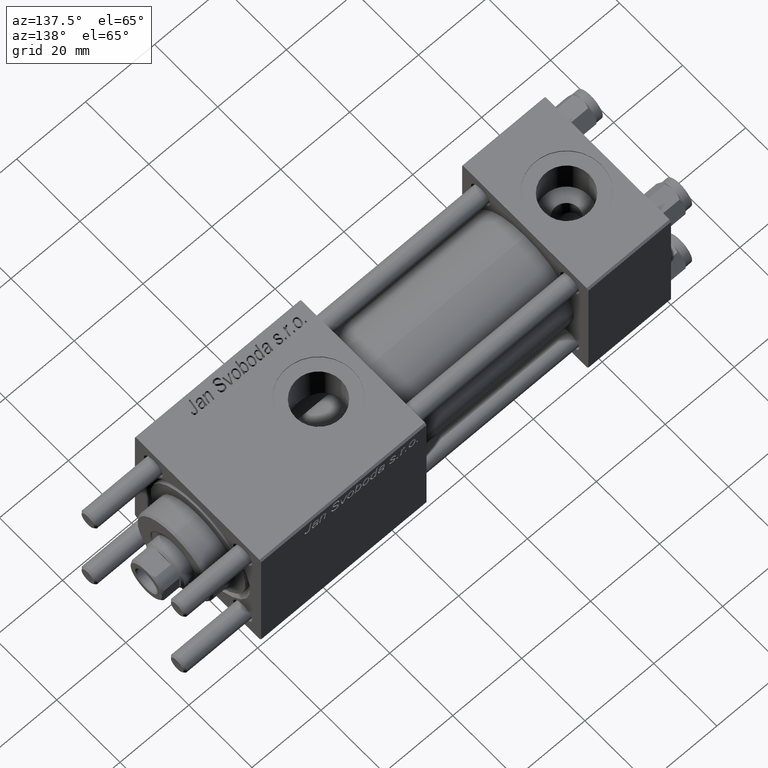
[diagram: clean part render]
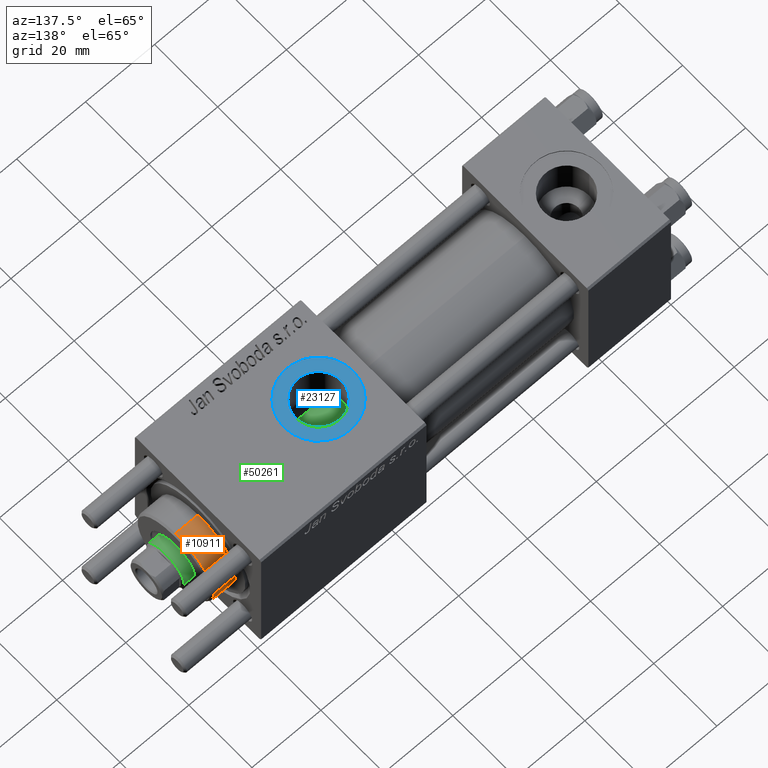
[diagram: same view with three faces highlighted in distinct colors, each labeled with its STEP entity id]
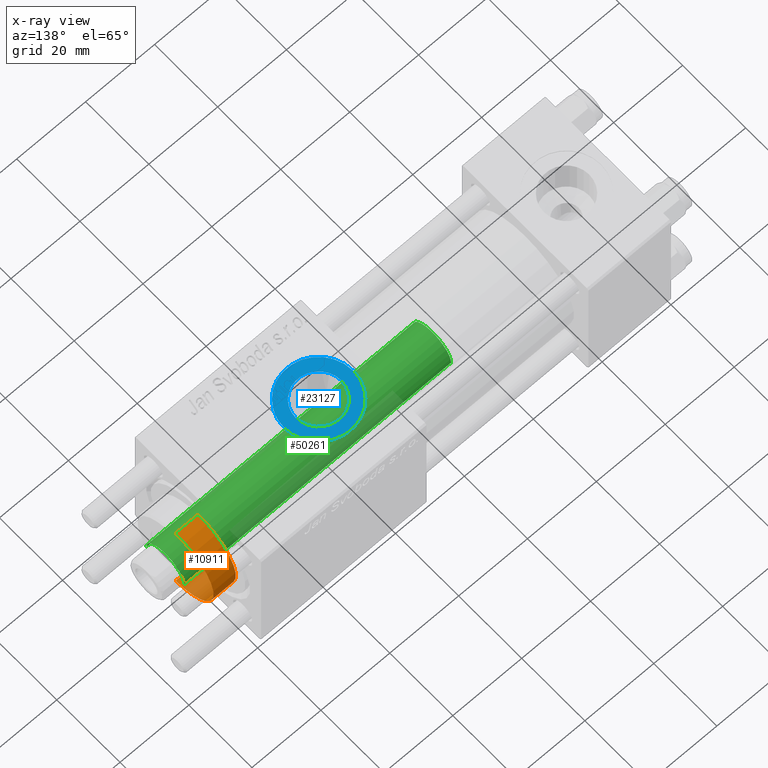
[diagram: x-ray of the same camera — body ghosted, the three highlighted faces saturated]
A machine part, auxiliary view with three faces highlighted in distinct colors.
The next image is the same camera in x-ray (body ghosted, the three faces saturated) — at least one of them is partly hidden behind the body in this view.
Their STEP definitions:

[orange] entity #10911 — the highlighted cylindrical surface (partial cylindrical patch) has radius 12 mm, axis along (-1, -0, 0).
#1764 = DIRECTION ( 'NONE',  ( -0.000000000000000000, -0.000000000000000000, -1.000000000000000000 ) ) ;
#2302 = VERTEX_POINT ( 'NONE', #48935 ) ;
#3316 = DIRECTION ( 'NONE',  ( -1.000000000000000000, 0.000000000000000000, 0.000000000000000000 ) ) ;
#7041 = ORIENTED_EDGE ( 'NONE', *, *, #15829, .F. ) ;
#8469 = DIRECTION ( 'NONE',  ( 1.000000000000000000, 0.000000000000000000, 0.000000000000000000 ) ) ;
#9552 = VERTEX_POINT ( 'NONE', #43004 ) ;
#9900 = CARTESIAN_POINT ( 'NONE',  ( 0.000000000000000000, 0.000000000000000000, 28.69999999999999929 ) ) ;
#10108 = CARTESIAN_POINT ( 'NONE',  ( 12.00000000000000178, 1.469576158976824144E-15, 35.70000000000000284 ) ) ;
#10657 = CARTESIAN_POINT ( 'NONE',  ( -12.00000000000000178, 0.000000000000000000, 28.69999999999999929 ) ) ;
#10911 = ADVANCED_FACE ( 'NONE', ( #20537 ), #42637, .T. ) ;
#11176 = EDGE_CURVE ( 'NONE', #2302, #44997, #39534, .T. ) ;
#15829 = EDGE_CURVE ( 'NONE', #20846, #44997, #43691, .T. ) ;
#16801 = CARTESIAN_POINT ( 'NONE',  ( 0.000000000000000000, 0.000000000000000000, 35.19999999999999574 ) ) ;
#17013 = ORIENTED_EDGE ( 'NONE', *, *, #11176, .T. ) ;
#17056 = AXIS2_PLACEMENT_3D ( 'NONE', #16801, #52090, #8469 ) ;
#17077 = CARTESIAN_POINT ( 'NONE',  ( 0.000000000000000000, 0.000000000000000000, 35.70000000000000284 ) ) ;
#17170 = CARTESIAN_POINT ( 'NONE',  ( -12.00000000000000178, 0.000000000000000000, 35.19999999999999574 ) ) ;
#17571 = DIRECTION ( 'NONE',  ( -0.000000000000000000, -0.000000000000000000, -1.000000000000000000 ) ) ;
#19569 = VECTOR ( 'NONE', #1764, 1000.000000000000000 ) ;
#20537 = FACE_OUTER_BOUND ( 'NONE', #21083, .T. ) ;
#20846 = VERTEX_POINT ( 'NONE', #17170 ) ;
#21083 = EDGE_LOOP ( 'NONE', ( #30814, #53252, #17013, #7041 ) ) ;
#21639 = CIRCLE ( 'NONE', #17056, 12.00000000000000178 ) ;
#27384 = DIRECTION ( 'NONE',  ( 0.000000000000000000, 0.000000000000000000, 1.000000000000000000 ) ) ;
#30814 = ORIENTED_EDGE ( 'NONE', *, *, #52834, .T. ) ;
#34034 = DIRECTION ( 'NONE',  ( -0.000000000000000000, -0.000000000000000000, -1.000000000000000000 ) ) ;
#38846 = EDGE_CURVE ( 'NONE', #9552, #2302, #41350, .T. ) ;
#39534 = CIRCLE ( 'NONE', #48696, 12.00000000000000178 ) ;
#41350 = LINE ( 'NONE', #10108, #19569 ) ;
#42637 = CYLINDRICAL_SURFACE ( 'NONE', #47794, 12.00000000000000178 ) ;
#43004 = CARTESIAN_POINT ( 'NONE',  ( 12.00000000000000178, 1.469576158976824144E-15, 35.19999999999999574 ) ) ;
#43691 = LINE ( 'NONE', #44252, #48693 ) ;
#44252 = CARTESIAN_POINT ( 'NONE',  ( -12.00000000000000178, 0.000000000000000000, 35.70000000000000284 ) ) ;
#44881 = DIRECTION ( 'NONE',  ( 1.000000000000000000, 0.000000000000000000, 0.000000000000000000 ) ) ;
#44997 = VERTEX_POINT ( 'NONE', #10657 ) ;
#47794 = AXIS2_PLACEMENT_3D ( 'NONE', #17077, #34034, #3316 ) ;
#48693 = VECTOR ( 'NONE', #17571, 1000.000000000000000 ) ;
#48696 = AXIS2_PLACEMENT_3D ( 'NONE', #9900, #27384, #44881 ) ;
#48935 = CARTESIAN_POINT ( 'NONE',  ( 12.00000000000000178, 1.469576158976824144E-15, 28.69999999999999929 ) ) ;
#52090 = DIRECTION ( 'NONE',  ( 0.000000000000000000, 0.000000000000000000, -1.000000000000000000 ) ) ;
#52834 = EDGE_CURVE ( 'NONE', #20846, #9552, #21639, .T. ) ;
#53252 = ORIENTED_EDGE ( 'NONE', *, *, #38846, .T. ) ;

[blue] entity #23127 — the highlighted planar face has unit normal (0, 0, 1).
#1192 = CARTESIAN_POINT ( 'NONE',  ( 84.00000000000000000, -1.734723475976806897E-15, 19.80000000000000071 ) ) ;
#1327 = DIRECTION ( 'NONE',  ( 0.000000000000000000, 0.000000000000000000, 1.000000000000000000 ) ) ;
#2524 = EDGE_LOOP ( 'NONE', ( #14708, #33573 ) ) ;
#4466 = EDGE_CURVE ( 'NONE', #41423, #46626, #22862, .T. ) ;
#5625 = DIRECTION ( 'NONE',  ( 1.000000000000000000, 0.000000000000000000, 0.000000000000000000 ) ) ;
#6081 = EDGE_CURVE ( 'NONE', #22282, #53778, #21054, .T. ) ;
#8049 = DIRECTION ( 'NONE',  ( 0.000000000000000000, 0.000000000000000000, 1.000000000000000000 ) ) ;
#9476 = DIRECTION ( 'NONE',  ( 0.000000000000000000, 0.000000000000000000, 1.000000000000000000 ) ) ;
#9537 = DIRECTION ( 'NONE',  ( 1.000000000000000000, 0.000000000000000000, 0.000000000000000000 ) ) ;
#10984 = ORIENTED_EDGE ( 'NONE', *, *, #6081, .T. ) ;
#14708 = ORIENTED_EDGE ( 'NONE', *, *, #4466, .T. ) ;
#16650 = FACE_BOUND ( 'NONE', #50867, .T. ) ;
#17370 = AXIS2_PLACEMENT_3D ( 'NONE', #20119, #37632, #33327 ) ;
#18919 = CIRCLE ( 'NONE', #26244, 6.580000000001542837 ) ;
#20119 = CARTESIAN_POINT ( 'NONE',  ( 84.00000000000000000, -1.734723475976806897E-15, 19.80000000000000071 ) ) ;
#20395 = CARTESIAN_POINT ( 'NONE',  ( 84.00000000000000000, -1.734723475976806897E-15, 19.80000000000000071 ) ) ;
#21054 = CIRCLE ( 'NONE', #17370, 6.580000000001542837 ) ;
#22282 = VERTEX_POINT ( 'NONE', #33949 ) ;
#22862 = CIRCLE ( 'NONE', #36591, 10.00000000000154898 ) ;
#23127 = ADVANCED_FACE ( 'NONE', ( #16650, #25259 ), #34457, .T. ) ;
#25259 = FACE_OUTER_BOUND ( 'NONE', #2524, .T. ) ;
#26244 = AXIS2_PLACEMENT_3D ( 'NONE', #1192, #48543, #9537 ) ;
#27528 = CARTESIAN_POINT ( 'NONE',  ( 77.41999999999846693, -1.734723475976806897E-15, 19.80000000000000071 ) ) ;
#32213 = EDGE_CURVE ( 'NONE', #53778, #22282, #18919, .T. ) ;
#33327 = DIRECTION ( 'NONE',  ( 1.000000000000000000, 0.000000000000000000, 0.000000000000000000 ) ) ;
#33573 = ORIENTED_EDGE ( 'NONE', *, *, #40864, .T. ) ;
#33949 = CARTESIAN_POINT ( 'NONE',  ( 90.58000000000154728, -9.289058821376599092E-16, 19.80000000000000071 ) ) ;
#34169 = DIRECTION ( 'NONE',  ( 1.000000000000000000, 0.000000000000000000, -0.000000000000000000 ) ) ;
#34259 = AXIS2_PLACEMENT_3D ( 'NONE', #20395, #8049, #34169 ) ;
#34457 = PLANE ( 'NONE',  #34259 ) ;
#35105 = CARTESIAN_POINT ( 'NONE',  ( 94.00000000000154898, -1.734723475976806897E-15, 19.80000000000000071 ) ) ;
#36591 = AXIS2_PLACEMENT_3D ( 'NONE', #53550, #1327, #5625 ) ;
#37632 = DIRECTION ( 'NONE',  ( -0.000000000000000000, -0.000000000000000000, -1.000000000000000000 ) ) ;
#39322 = DIRECTION ( 'NONE',  ( 1.000000000000000000, 0.000000000000000000, 0.000000000000000000 ) ) ;
#40864 = EDGE_CURVE ( 'NONE', #46626, #41423, #43273, .T. ) ;
#41423 = VERTEX_POINT ( 'NONE', #35105 ) ;
#42337 = AXIS2_PLACEMENT_3D ( 'NONE', #48767, #9476, #39322 ) ;
#43273 = CIRCLE ( 'NONE', #42337, 10.00000000000154898 ) ;
#44981 = ORIENTED_EDGE ( 'NONE', *, *, #32213, .T. ) ;
#46626 = VERTEX_POINT ( 'NONE', #52522 ) ;
#48543 = DIRECTION ( 'NONE',  ( -0.000000000000000000, -0.000000000000000000, -1.000000000000000000 ) ) ;
#48767 = CARTESIAN_POINT ( 'NONE',  ( 84.00000000000000000, -1.734723475976806897E-15, 19.80000000000000071 ) ) ;
#50867 = EDGE_LOOP ( 'NONE', ( #44981, #10984 ) ) ;
#52522 = CARTESIAN_POINT ( 'NONE',  ( 73.99999999999845102, -5.100766768292640183E-16, 19.80000000000000071 ) ) ;
#53550 = CARTESIAN_POINT ( 'NONE',  ( 84.00000000000000000, -1.734723475976806897E-15, 19.80000000000000071 ) ) ;
#53778 = VERTEX_POINT ( 'NONE', #27528 ) ;

[green] entity #50261 — the highlighted cylindrical surface (edge-blend (fillet) strip) has radius 6 mm, axis along (-1, 0, 0).
#1367 = VECTOR ( 'NONE', #30078, 1000.000000000000000 ) ;
#2287 = ORIENTED_EDGE ( 'NONE', *, *, #48862, .T. ) ;
#3451 = CARTESIAN_POINT ( 'NONE',  ( 0.000000000000000000, 0.000000000000000000, 27.00000000000000000 ) ) ;
#4778 = EDGE_CURVE ( 'NONE', #4916, #49075, #28502, .T. ) ;
#4916 = VERTEX_POINT ( 'NONE', #19766 ) ;
#6582 = AXIS2_PLACEMENT_3D ( 'NONE', #50327, #53784, #49482 ) ;
#6900 = AXIS2_PLACEMENT_3D ( 'NONE', #37246, #32938, #40959 ) ;
#8297 = CARTESIAN_POINT ( 'NONE',  ( -6.000000000000000888, 0.000000000000000000, 27.00000000000000000 ) ) ;
#14831 = CARTESIAN_POINT ( 'NONE',  ( 6.000000000000000888, 7.347880794884120722E-16, 27.00000000000000000 ) ) ;
#16419 = EDGE_CURVE ( 'NONE', #4916, #34430, #39575, .T. ) ;
#17728 = CIRCLE ( 'NONE', #48898, 6.000000000000000888 ) ;
#19154 = FACE_OUTER_BOUND ( 'NONE', #27811, .T. ) ;
#19766 = CARTESIAN_POINT ( 'NONE',  ( 6.000000000000000888, 7.347880794884120722E-16, 104.5000000000000142 ) ) ;
#21165 = CARTESIAN_POINT ( 'NONE',  ( -6.000000000000000888, 0.000000000000000000, 105.0000000000000000 ) ) ;
#23085 = EDGE_CURVE ( 'NONE', #24610, #49075, #17728, .T. ) ;
#24584 = CARTESIAN_POINT ( 'NONE',  ( -6.000000000000000888, 0.000000000000000000, 104.5000000000000142 ) ) ;
#24610 = VERTEX_POINT ( 'NONE', #8297 ) ;
#24658 = VECTOR ( 'NONE', #45998, 1000.000000000000000 ) ;
#27811 = EDGE_LOOP ( 'NONE', ( #28550, #39640, #2287, #54668 ) ) ;
#28502 = LINE ( 'NONE', #37698, #24658 ) ;
#28550 = ORIENTED_EDGE ( 'NONE', *, *, #4778, .F. ) ;
#30078 = DIRECTION ( 'NONE',  ( -0.000000000000000000, -0.000000000000000000, -1.000000000000000000 ) ) ;
#32938 = DIRECTION ( 'NONE',  ( -0.000000000000000000, -0.000000000000000000, -1.000000000000000000 ) ) ;
#33888 = DIRECTION ( 'NONE',  ( 0.000000000000000000, 0.000000000000000000, 1.000000000000000000 ) ) ;
#34390 = LINE ( 'NONE', #21165, #1367 ) ;
#34430 = VERTEX_POINT ( 'NONE', #24584 ) ;
#37246 = CARTESIAN_POINT ( 'NONE',  ( 0.000000000000000000, 0.000000000000000000, 105.0000000000000000 ) ) ;
#37698 = CARTESIAN_POINT ( 'NONE',  ( 6.000000000000000888, 7.347880794884120722E-16, 105.0000000000000000 ) ) ;
#39575 = CIRCLE ( 'NONE', #6582, 6.000000000000000888 ) ;
#39640 = ORIENTED_EDGE ( 'NONE', *, *, #16419, .T. ) ;
#40959 = DIRECTION ( 'NONE',  ( -1.000000000000000000, 0.000000000000000000, 0.000000000000000000 ) ) ;
#42487 = DIRECTION ( 'NONE',  ( 1.000000000000000000, 0.000000000000000000, 0.000000000000000000 ) ) ;
#45830 = CYLINDRICAL_SURFACE ( 'NONE', #6900, 6.000000000000000888 ) ;
#45998 = DIRECTION ( 'NONE',  ( -0.000000000000000000, -0.000000000000000000, -1.000000000000000000 ) ) ;
#48862 = EDGE_CURVE ( 'NONE', #34430, #24610, #34390, .T. ) ;
#48898 = AXIS2_PLACEMENT_3D ( 'NONE', #3451, #33888, #42487 ) ;
#49075 = VERTEX_POINT ( 'NONE', #14831 ) ;
#49482 = DIRECTION ( 'NONE',  ( 1.000000000000000000, 0.000000000000000000, 0.000000000000000000 ) ) ;
#50261 = ADVANCED_FACE ( 'NONE', ( #19154 ), #45830, .T. ) ;
#50327 = CARTESIAN_POINT ( 'NONE',  ( 0.000000000000000000, 0.000000000000000000, 104.5000000000000142 ) ) ;
#53784 = DIRECTION ( 'NONE',  ( 0.000000000000000000, 0.000000000000000000, -1.000000000000000000 ) ) ;
#54668 = ORIENTED_EDGE ( 'NONE', *, *, #23085, .T. ) ;